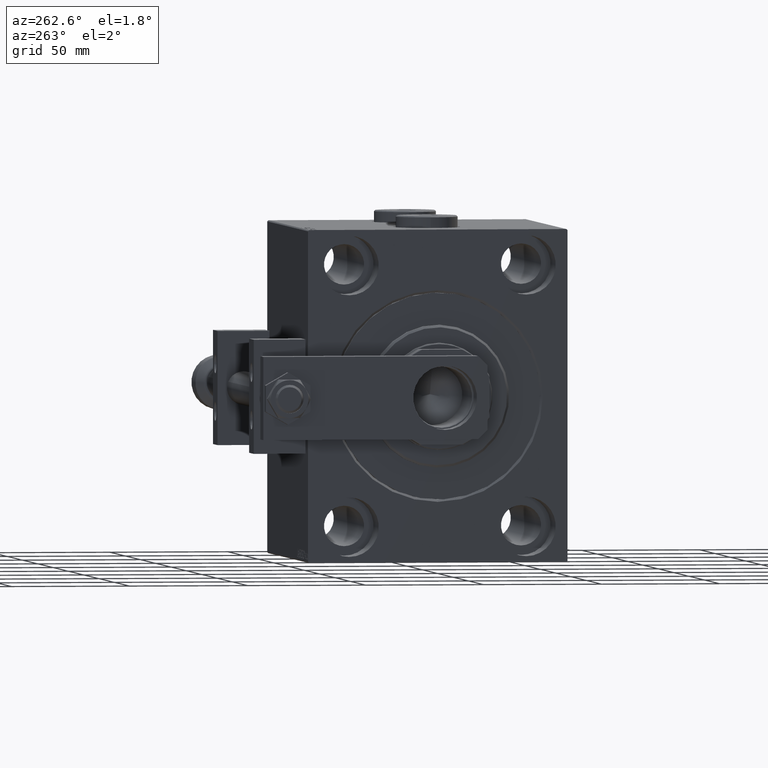
[diagram: clean part render]
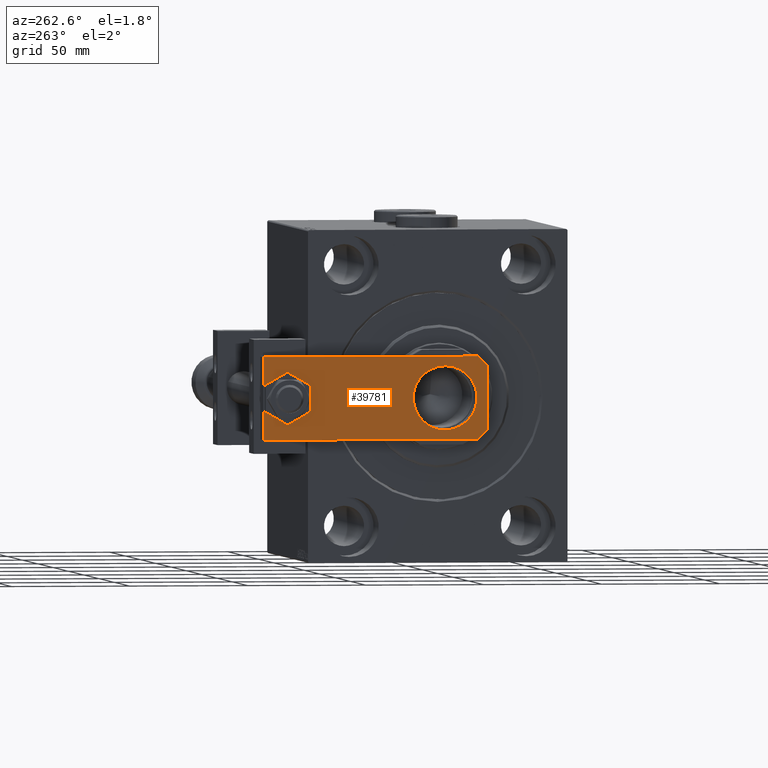
[diagram: same view with one face highlighted and labeled with its STEP entity id]
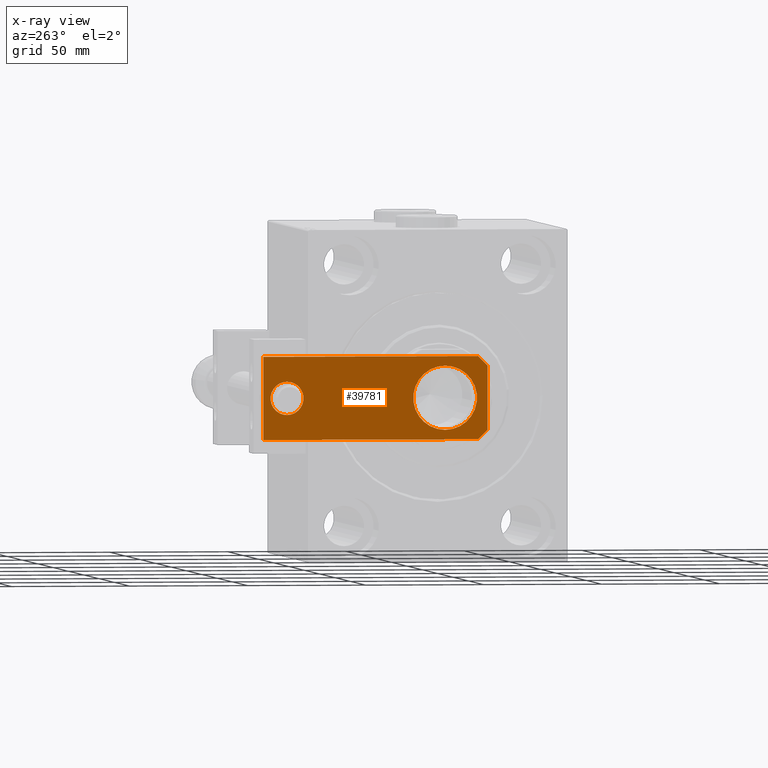
[diagram: x-ray of the same camera — body ghosted, the highlighted face saturated]
A machine part, auxiliary view. The second image highlights one B-rep face of the part: STEP entity #39781.
The next image is the same camera in x-ray: the body ghosted, the highlighted face saturated — about 0% of this face is hidden behind the body in this view.
In plain terms, the highlighted planar face has unit normal (-1, 0, 0).
Its self-contained STEP definition (entity closure, byte-faithful):
#1324 = EDGE_LOOP ( 'NONE', ( #11203, #3485 ) ) ;
#1615 = EDGE_CURVE ( 'NONE', #3251, #3057, #30422, .T. ) ;
#1942 = EDGE_LOOP ( 'NONE', ( #37560, #45131 ) ) ;
#2928 = VERTEX_POINT ( 'NONE', #49638 ) ;
#3057 = VERTEX_POINT ( 'NONE', #22046 ) ;
#3251 = VERTEX_POINT ( 'NONE', #11148 ) ;
#3309 = DIRECTION ( 'NONE',  ( 1.000000000000000000, 0.000000000000000000, 0.000000000000000000 ) ) ;
#3485 = ORIENTED_EDGE ( 'NONE', *, *, #37449, .F. ) ;
#3940 = FACE_OUTER_BOUND ( 'NONE', #11821, .T. ) ;
#4006 = EDGE_CURVE ( 'NONE', #12811, #10557, #46584, .T. ) ;
#4633 = DIRECTION ( 'NONE',  ( 1.000000000000000000, 0.000000000000000000, 0.000000000000000000 ) ) ;
#5036 = VECTOR ( 'NONE', #5416, 1000.000000000000000 ) ;
#5416 = DIRECTION ( 'NONE',  ( 0.7071067811865487940, 0.7071067811865463515, -0.000000000000000000 ) ) ;
#5603 = CARTESIAN_POINT ( 'NONE',  ( -17.50000000000001066, 4.000000000000003553, 10.00000000000000000 ) ) ;
#6327 = DIRECTION ( 'NONE',  ( 0.7071067811865462405, -0.7071067811865489050, 0.000000000000000000 ) ) ;
#6476 = ORIENTED_EDGE ( 'NONE', *, *, #49268, .T. ) ;
#8876 = LINE ( 'NONE', #13913, #42324 ) ;
#9458 = EDGE_CURVE ( 'NONE', #27954, #30102, #49207, .T. ) ;
#9515 = VECTOR ( 'NONE', #6327, 999.9999999999998863 ) ;
#10309 = LINE ( 'NONE', #26507, #9515 ) ;
#10557 = VERTEX_POINT ( 'NONE', #28245 ) ;
#11148 = CARTESIAN_POINT ( 'NONE',  ( -13.50000000000000000, 18.00000000000000711, 10.00000000000000000 ) ) ;
#11203 = ORIENTED_EDGE ( 'NONE', *, *, #13217, .F. ) ;
#11816 = AXIS2_PLACEMENT_3D ( 'NONE', #24373, #20122, #36321 ) ;
#11821 = EDGE_LOOP ( 'NONE', ( #38228, #6476, #23067, #24711, #32659, #42018 ) ) ;
#11903 = FACE_BOUND ( 'NONE', #1942, .T. ) ;
#12043 = CARTESIAN_POINT ( 'NONE',  ( 0.000000000000000000, 18.00000000000000711, 10.00000000000000000 ) ) ;
#12526 = DIRECTION ( 'NONE',  ( 0.000000000000000000, 0.000000000000000000, 1.000000000000000000 ) ) ;
#12811 = VERTEX_POINT ( 'NONE', #50513 ) ;
#13217 = EDGE_CURVE ( 'NONE', #19097, #2928, #23046, .T. ) ;
#13238 = CARTESIAN_POINT ( 'NONE',  ( 17.50000000000000000, 95.00000000000000000, 10.00000000000000000 ) ) ;
#13913 = CARTESIAN_POINT ( 'NONE',  ( -17.50000000000001066, 9.629649721936179265E-32, 10.00000000000000000 ) ) ;
#14808 = CARTESIAN_POINT ( 'NONE',  ( 0.000000000000000000, 18.00000000000000711, 10.00000000000000000 ) ) ;
#15127 = AXIS2_PLACEMENT_3D ( 'NONE', #12043, #31716, #3309 ) ;
#16276 = EDGE_CURVE ( 'NONE', #3057, #3251, #29905, .T. ) ;
#17095 = CARTESIAN_POINT ( 'NONE',  ( -13.50000000000002309, 9.629649721936179265E-32, 10.00000000000000000 ) ) ;
#17760 = CARTESIAN_POINT ( 'NONE',  ( 13.49999999999999467, 9.629649721936179265E-32, 10.00000000000000000 ) ) ;
#18605 = CIRCLE ( 'NONE', #29660, 7.000000000000002665 ) ;
#19097 = VERTEX_POINT ( 'NONE', #25391 ) ;
#19775 = CARTESIAN_POINT ( 'NONE',  ( -17.50000000000000355, 95.00000000000000000, 10.00000000000000000 ) ) ;
#20122 = DIRECTION ( 'NONE',  ( -0.000000000000000000, 0.000000000000000000, 1.000000000000000000 ) ) ;
#21124 = VECTOR ( 'NONE', #41829, 1000.000000000000000 ) ;
#21355 = CARTESIAN_POINT ( 'NONE',  ( -17.50000000000000355, 95.00000000000000000, 10.00000000000000000 ) ) ;
#22046 = CARTESIAN_POINT ( 'NONE',  ( 13.50000000000000000, 18.00000000000000711, 10.00000000000000000 ) ) ;
#22517 = DIRECTION ( 'NONE',  ( 1.000000000000000000, 0.000000000000000000, 0.000000000000000000 ) ) ;
#23046 = CIRCLE ( 'NONE', #30721, 7.000000000000002665 ) ;
#23067 = ORIENTED_EDGE ( 'NONE', *, *, #36977, .T. ) ;
#23761 = VECTOR ( 'NONE', #40478, 1000.000000000000000 ) ;
#24373 = CARTESIAN_POINT ( 'NONE',  ( 0.000000000000000000, 0.000000000000000000, 10.00000000000000000 ) ) ;
#24711 = ORIENTED_EDGE ( 'NONE', *, *, #40130, .T. ) ;
#25391 = CARTESIAN_POINT ( 'NONE',  ( -7.000000000000002665, 85.00000000000000000, 10.00000000000000000 ) ) ;
#25580 = CARTESIAN_POINT ( 'NONE',  ( 6.749999999999975131, -6.749999999999998224, 10.00000000000000000 ) ) ;
#26063 = DIRECTION ( 'NONE',  ( 1.000000000000000000, 0.000000000000000000, 0.000000000000000000 ) ) ;
#26507 = CARTESIAN_POINT ( 'NONE',  ( -6.750000000000036415, -6.750000000000012434, 10.00000000000000000 ) ) ;
#27954 = VERTEX_POINT ( 'NONE', #19775 ) ;
#28104 = PLANE ( 'NONE',  #11816 ) ;
#28245 = CARTESIAN_POINT ( 'NONE',  ( 17.50000000000000000, 95.00000000000000000, 10.00000000000000000 ) ) ;
#29660 = AXIS2_PLACEMENT_3D ( 'NONE', #36177, #12526, #44135 ) ;
#29905 = CIRCLE ( 'NONE', #30740, 13.50000000000000000 ) ;
#30071 = CARTESIAN_POINT ( 'NONE',  ( 1.963948872468190046E-17, 85.00000000000000000, 10.00000000000000000 ) ) ;
#30102 = VERTEX_POINT ( 'NONE', #5603 ) ;
#30422 = CIRCLE ( 'NONE', #15127, 13.50000000000000000 ) ;
#30698 = CARTESIAN_POINT ( 'NONE',  ( 17.50000000000001066, 9.629649721936179265E-32, 10.00000000000000000 ) ) ;
#30721 = AXIS2_PLACEMENT_3D ( 'NONE', #30071, #46228, #26063 ) ;
#30740 = AXIS2_PLACEMENT_3D ( 'NONE', #14808, #42681, #22517 ) ;
#31716 = DIRECTION ( 'NONE',  ( 0.000000000000000000, 0.000000000000000000, 1.000000000000000000 ) ) ;
#32084 = FACE_BOUND ( 'NONE', #1324, .T. ) ;
#32659 = ORIENTED_EDGE ( 'NONE', *, *, #4006, .T. ) ;
#36177 = CARTESIAN_POINT ( 'NONE',  ( 1.963948872468190046E-17, 85.00000000000000000, 10.00000000000000000 ) ) ;
#36321 = DIRECTION ( 'NONE',  ( 1.000000000000000000, 0.000000000000000000, 0.000000000000000000 ) ) ;
#36977 = EDGE_CURVE ( 'NONE', #45927, #48111, #8876, .T. ) ;
#37449 = EDGE_CURVE ( 'NONE', #2928, #19097, #18605, .T. ) ;
#37560 = ORIENTED_EDGE ( 'NONE', *, *, #1615, .F. ) ;
#38228 = ORIENTED_EDGE ( 'NONE', *, *, #9458, .T. ) ;
#38925 = VECTOR ( 'NONE', #45615, 1000.000000000000000 ) ;
#39781 = ADVANCED_FACE ( 'NONE', ( #32084, #3940, #11903 ), #28104, .T. ) ;
#40130 = EDGE_CURVE ( 'NONE', #48111, #12811, #49445, .T. ) ;
#40478 = DIRECTION ( 'NONE',  ( -7.304098846218135653E-17, -1.000000000000000000, 0.000000000000000000 ) ) ;
#40698 = EDGE_CURVE ( 'NONE', #10557, #27954, #41370, .T. ) ;
#41370 = LINE ( 'NONE', #13238, #38925 ) ;
#41829 = DIRECTION ( 'NONE',  ( -1.095614826932720348E-16, 1.000000000000000000, 0.000000000000000000 ) ) ;
#42018 = ORIENTED_EDGE ( 'NONE', *, *, #40698, .T. ) ;
#42324 = VECTOR ( 'NONE', #4633, 1000.000000000000000 ) ;
#42681 = DIRECTION ( 'NONE',  ( 0.000000000000000000, 0.000000000000000000, 1.000000000000000000 ) ) ;
#44135 = DIRECTION ( 'NONE',  ( 1.000000000000000000, 0.000000000000000000, 0.000000000000000000 ) ) ;
#45131 = ORIENTED_EDGE ( 'NONE', *, *, #16276, .F. ) ;
#45615 = DIRECTION ( 'NONE',  ( -1.000000000000000000, 0.000000000000000000, 0.000000000000000000 ) ) ;
#45927 = VERTEX_POINT ( 'NONE', #17095 ) ;
#46228 = DIRECTION ( 'NONE',  ( 0.000000000000000000, 0.000000000000000000, 1.000000000000000000 ) ) ;
#46584 = LINE ( 'NONE', #30698, #21124 ) ;
#48111 = VERTEX_POINT ( 'NONE', #17760 ) ;
#49207 = LINE ( 'NONE', #21355, #23761 ) ;
#49268 = EDGE_CURVE ( 'NONE', #30102, #45927, #10309, .T. ) ;
#49445 = LINE ( 'NONE', #25580, #5036 ) ;
#49638 = CARTESIAN_POINT ( 'NONE',  ( 7.000000000000002665, 85.00000000000000000, 10.00000000000000000 ) ) ;
#50513 = CARTESIAN_POINT ( 'NONE',  ( 17.50000000000001066, 4.000000000000002665, 10.00000000000000000 ) ) ;